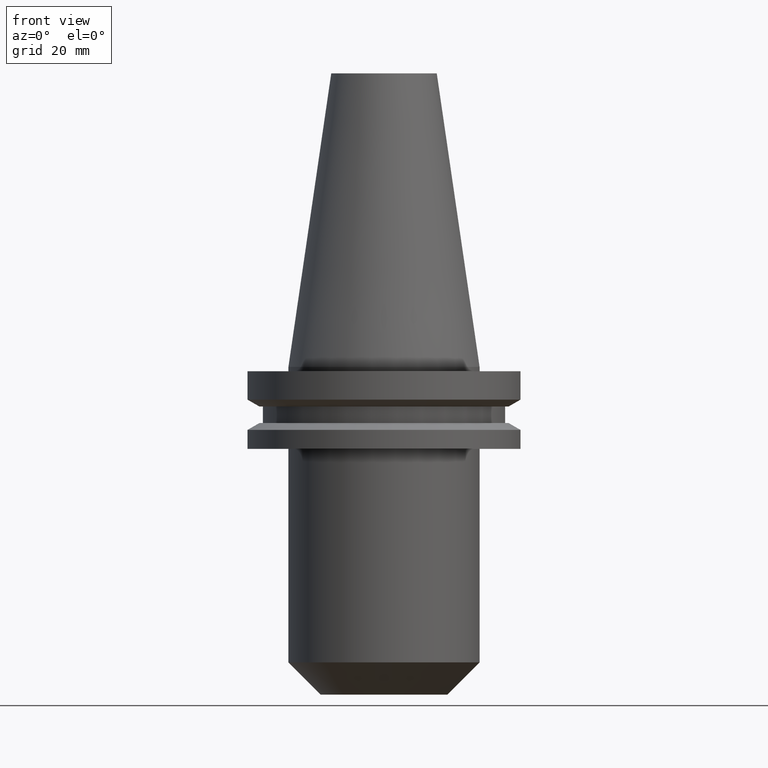
[diagram: clean part render]
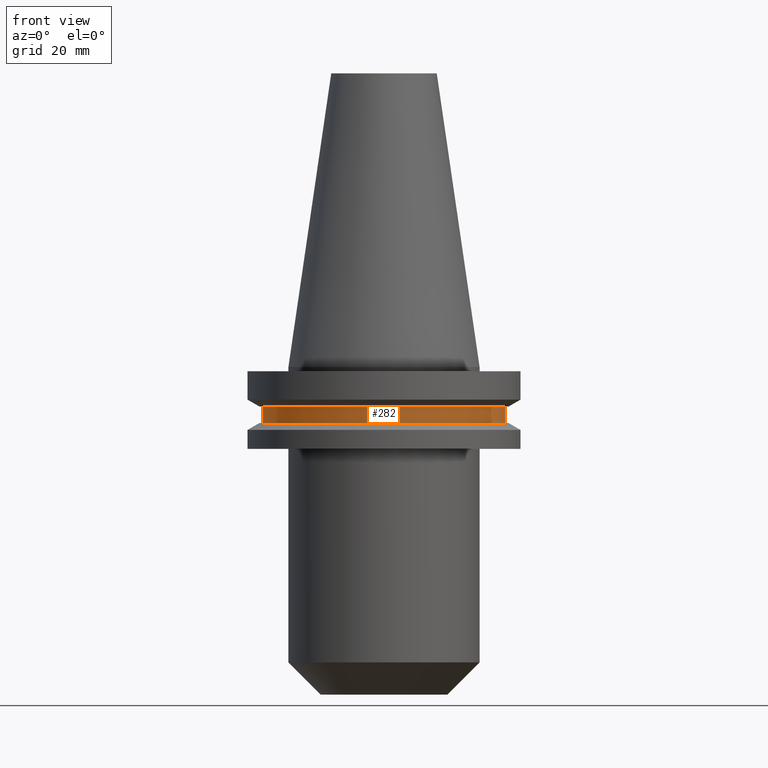
[diagram: same view with one face highlighted and labeled with its STEP entity id]
A machine part, front view. The second image highlights one B-rep face of the part: STEP entity #282.
In plain terms, the highlighted cylindrical surface (partial cylindrical patch) has radius 28.18 mm, axis along (-0, -0, 1).
Its self-contained STEP definition (entity closure, byte-faithful):
#13 = DIRECTION ( 'NONE',  ( -0.000000000000000000, -0.000000000000000000, 1.000000000000000000 ) ) ;
#33 = CARTESIAN_POINT ( 'NONE',  ( -28.17999999999999972, 3.451054679997241634E-15, 68.25000000000000000 ) ) ;
#94 = AXIS2_PLACEMENT_3D ( 'NONE', #640, #744, #627 ) ;
#97 = CARTESIAN_POINT ( 'NONE',  ( 28.17999999999999972, 0.000000000000000000, -13.05499999999999794 ) ) ;
#105 = AXIS2_PLACEMENT_3D ( 'NONE', #368, #13, #375 ) ;
#108 = EDGE_CURVE ( 'NONE', #641, #606, #500, .T. ) ;
#123 = CARTESIAN_POINT ( 'NONE',  ( 0.000000000000000000, 0.000000000000000000, 68.25000000000000000 ) ) ;
#140 = ORIENTED_EDGE ( 'NONE', *, *, #621, .F. ) ;
#148 = LINE ( 'NONE', #33, #264 ) ;
#154 = CIRCLE ( 'NONE', #105, 28.17999999999999972 ) ;
#163 = VECTOR ( 'NONE', #252, 1000.000000000000000 ) ;
#183 = VERTEX_POINT ( 'NONE', #230 ) ;
#211 = CARTESIAN_POINT ( 'NONE',  ( 28.17999999999999972, 0.000000000000000000, 68.25000000000000000 ) ) ;
#230 = CARTESIAN_POINT ( 'NONE',  ( -28.17999999999999972, 3.451054679997241634E-15, -13.05499999999999794 ) ) ;
#252 = DIRECTION ( 'NONE',  ( -0.000000000000000000, -0.000000000000000000, 1.000000000000000000 ) ) ;
#264 = VECTOR ( 'NONE', #265, 1000.000000000000000 ) ;
#265 = DIRECTION ( 'NONE',  ( -0.000000000000000000, -0.000000000000000000, 1.000000000000000000 ) ) ;
#282 = ADVANCED_FACE ( 'NONE', ( #303 ), #491, .T. ) ;
#303 = FACE_OUTER_BOUND ( 'NONE', #577, .T. ) ;
#350 = DIRECTION ( 'NONE',  ( -0.000000000000000000, -0.000000000000000000, 1.000000000000000000 ) ) ;
#368 = CARTESIAN_POINT ( 'NONE',  ( 0.000000000000000000, 0.000000000000000000, -13.05499999999999794 ) ) ;
#375 = DIRECTION ( 'NONE',  ( 1.000000000000000000, 0.000000000000000000, 0.000000000000000000 ) ) ;
#393 = CIRCLE ( 'NONE', #94, 28.17999999999999972 ) ;
#425 = DIRECTION ( 'NONE',  ( 1.000000000000000000, 0.000000000000000000, 0.000000000000000000 ) ) ;
#486 = EDGE_CURVE ( 'NONE', #183, #641, #154, .T. ) ;
#491 = CYLINDRICAL_SURFACE ( 'NONE', #544, 28.17999999999999972 ) ;
#500 = LINE ( 'NONE', #211, #163 ) ;
#504 = ORIENTED_EDGE ( 'NONE', *, *, #108, .T. ) ;
#544 = AXIS2_PLACEMENT_3D ( 'NONE', #123, #350, #425 ) ;
#563 = CARTESIAN_POINT ( 'NONE',  ( -28.17999999999999972, 3.451054679997241634E-15, -9.204999999999991189 ) ) ;
#577 = EDGE_LOOP ( 'NONE', ( #653, #774, #504, #140 ) ) ;
#606 = VERTEX_POINT ( 'NONE', #732 ) ;
#617 = VERTEX_POINT ( 'NONE', #563 ) ;
#621 = EDGE_CURVE ( 'NONE', #617, #606, #393, .T. ) ;
#627 = DIRECTION ( 'NONE',  ( 1.000000000000000000, 0.000000000000000000, 0.000000000000000000 ) ) ;
#640 = CARTESIAN_POINT ( 'NONE',  ( 0.000000000000000000, 0.000000000000000000, -9.204999999999991189 ) ) ;
#641 = VERTEX_POINT ( 'NONE', #97 ) ;
#653 = ORIENTED_EDGE ( 'NONE', *, *, #728, .F. ) ;
#728 = EDGE_CURVE ( 'NONE', #183, #617, #148, .T. ) ;
#732 = CARTESIAN_POINT ( 'NONE',  ( 28.17999999999999972, 0.000000000000000000, -9.204999999999991189 ) ) ;
#744 = DIRECTION ( 'NONE',  ( -0.000000000000000000, -0.000000000000000000, 1.000000000000000000 ) ) ;
#774 = ORIENTED_EDGE ( 'NONE', *, *, #486, .T. ) ;